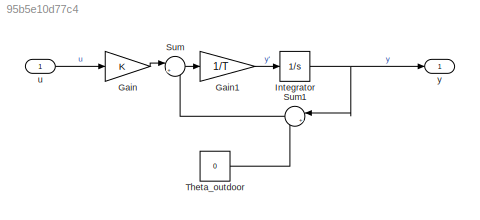
MODEL slx_95b5e10d77c4
KIND model
CONFIG AbsTol = auto
CONFIG EnableMultiTasking = off
CONFIG FixedStep = 10
CONFIG MaxStep = auto
CONFIG MinStep = auto
CONFIG RelTol = 1e-3
CONFIG SampleTimeConstraint = Unconstrained
CONFIG SolverName = FixedStepAuto
CONFIG StartTime = 0.0
CONFIG StopTime = 6000
BLOCK [Gain] Gain
  Gain = K
BLOCK [Gain] Gain1
  Gain = 1/T
BLOCK [Integrator] Integrator
  AttributesFormatString = IC: %<InitialCondition>
  InitialCondition = Theta_0
BLOCK [Sum] Sum
  Inputs = |+-
BLOCK [Sum] Sum1
  Inputs = |+-
BLOCK [Constant] Theta_outdoor
  Value = 0
BLOCK [Inport] u
  OutDataTypeStr = double
  PortDimensions = 1
  SamplingMode = Sample based
  SignalType = real
BLOCK [Outport] y
  OutDataTypeStr = double
  PortDimensions = 1
  SampleTime = 0
  SamplingMode = Sample based
  SignalType = real
LINE Gain1:1 -> Integrator:1
LINE Gain:1 -> Sum:1
NET Integrator:1 -> Sum1:1, y:1
LINE Sum1:1 -> Sum:2
LINE Sum:1 -> Gain1:1
LINE Theta_outdoor:1 -> Sum1:2
LINE u:1 -> Gain:1
note: NET lines group one-source signal fan-out (src -> all destinations, sorted); 1:1 wires keep LINE
